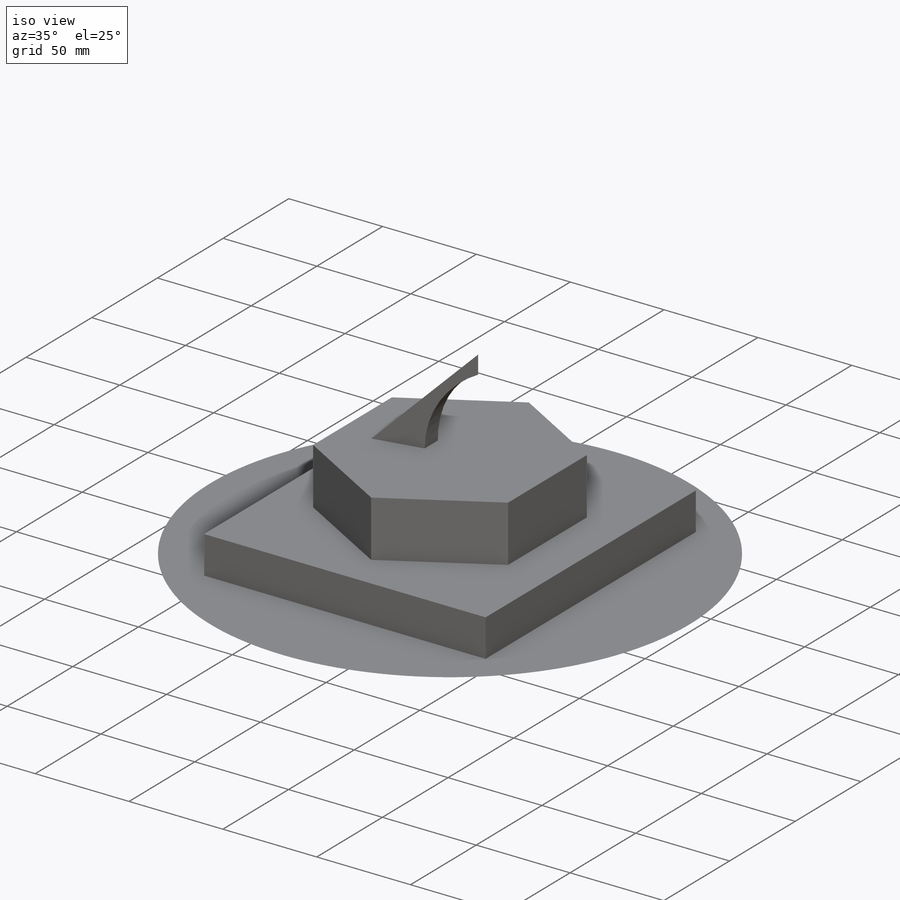
[diagram: iso view]
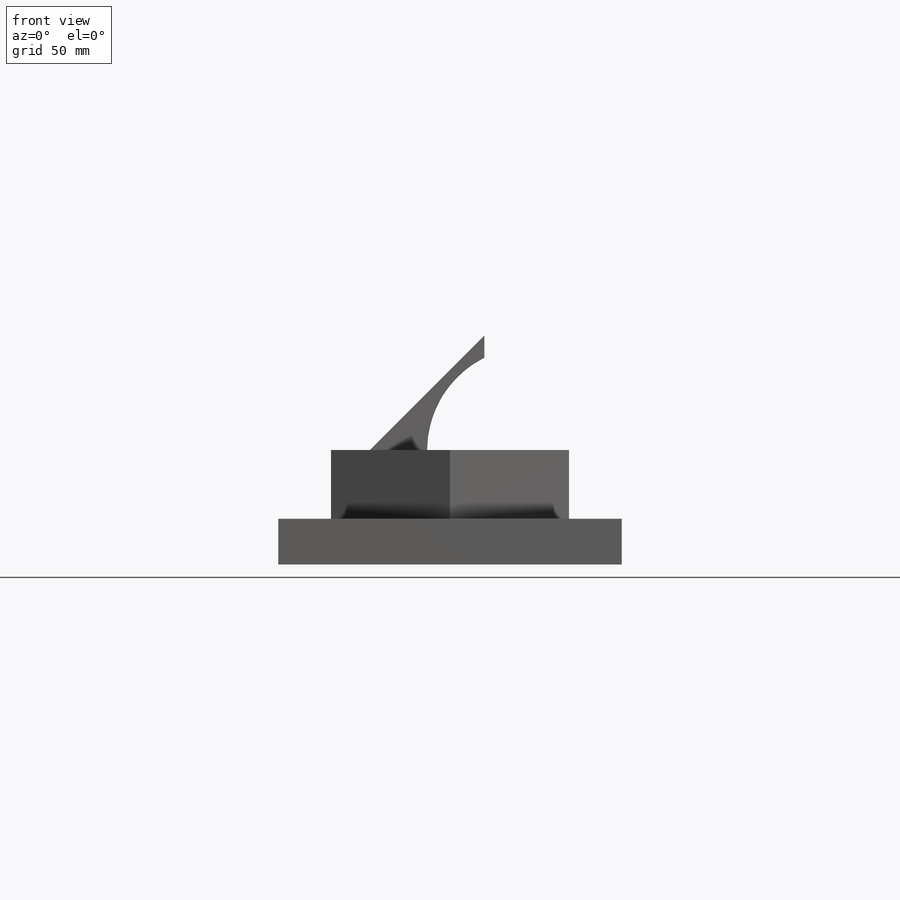
[diagram: front view]
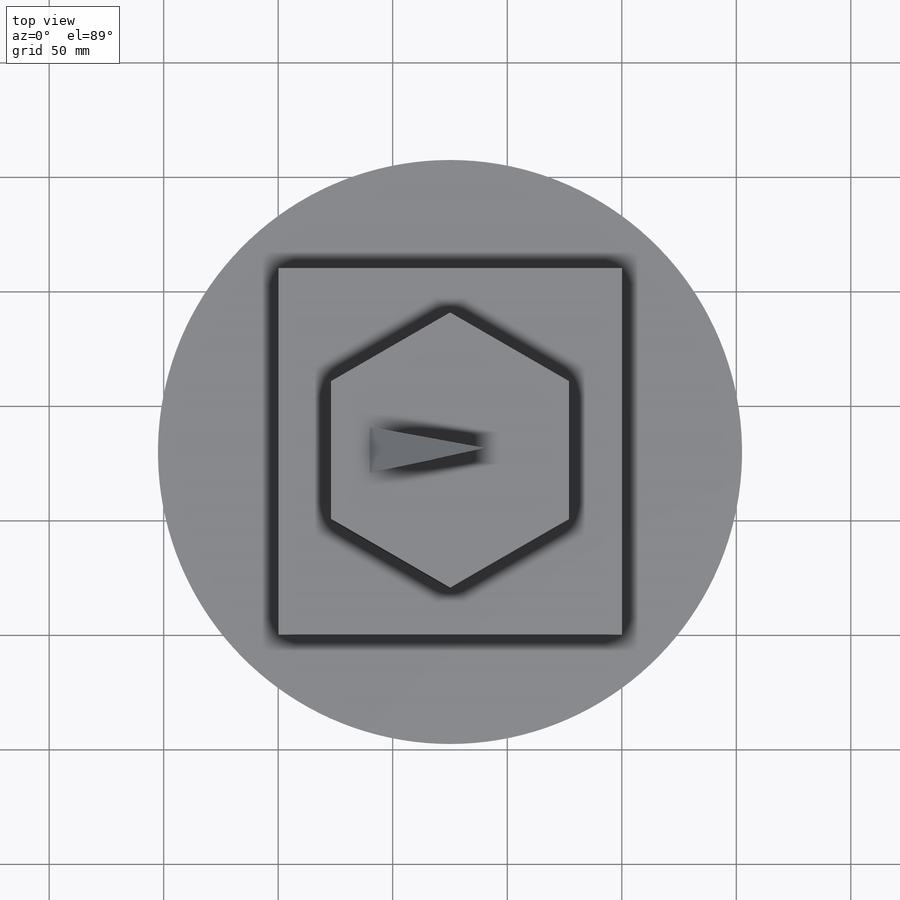
[diagram: top view]
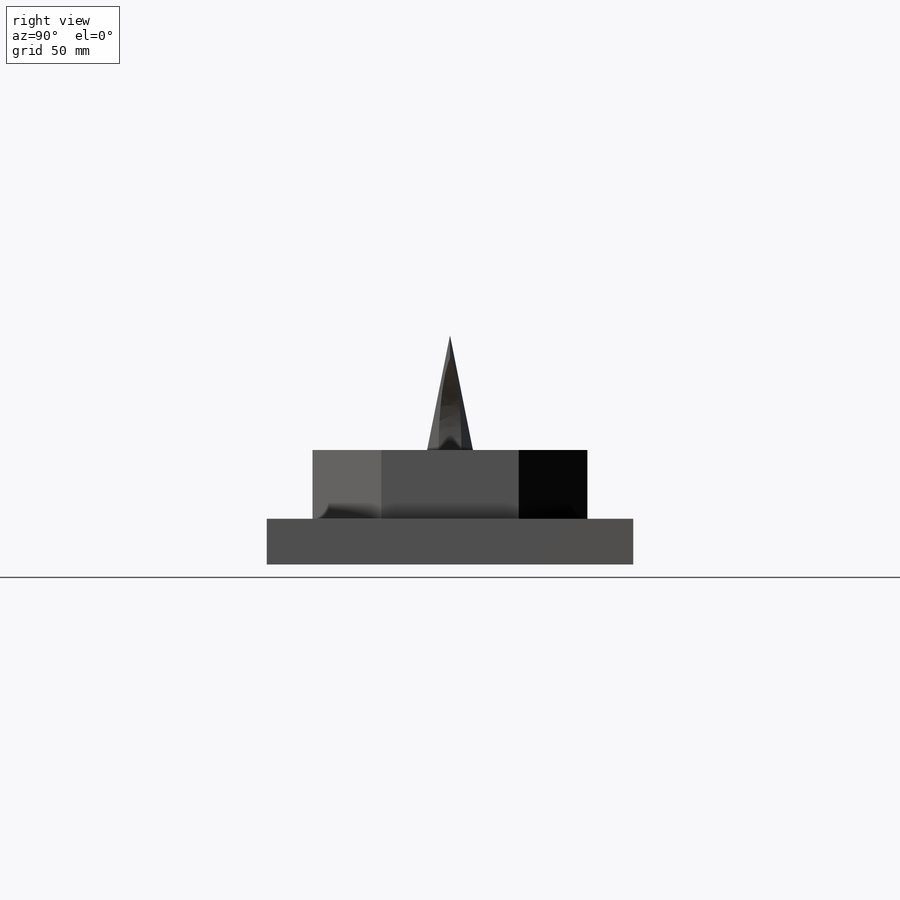
[diagram: right view]
SOLIDWORKS PART (.sldprt)
format: sldprt  version: not decoded by parser v0  size: 263,168 bytes
history: native  units: mm
features: sketch x5, extrude x4, material x1, cut_extrude x1 (+14 scaffold rows collapsed)
feature tree (25):
  scaffold x14  (default folders/planes/origin — collapsed)
  material  "Material <not specified>"
  sketch  "Sketch1"  dims[D1=150.0mm D2=160.0mm]
  extrude  "Extrude1"  Depth=20mm
  sketch  "Sketch2"  dims[D1=60.0mm]
  extrude  "Extrude2"  Depth=30mm
  sketch  "Sketch3"  dims[D1=40.0mm D2=20.0mm D3=10.0mm D4=50.0mm]
  extrude  "Extrude3"  Depth=50mm
  sketch  "Sketch4"  dims[D1=45.0mm D2=20.0mm D3=50.0mm]
  cut_extrude  "Extrude4"  [1 undecoded]
  sketch  "Sketch5"  dims[D1=255.0mm]
  extrude  "Extrude5"  Depth=0.01mm
decode coverage: 9 of 10 modeling features carry decoded parameters
note: 1 parameter value undecoded
note: suppression state not decoded; provenance and decode notes live in map.json
